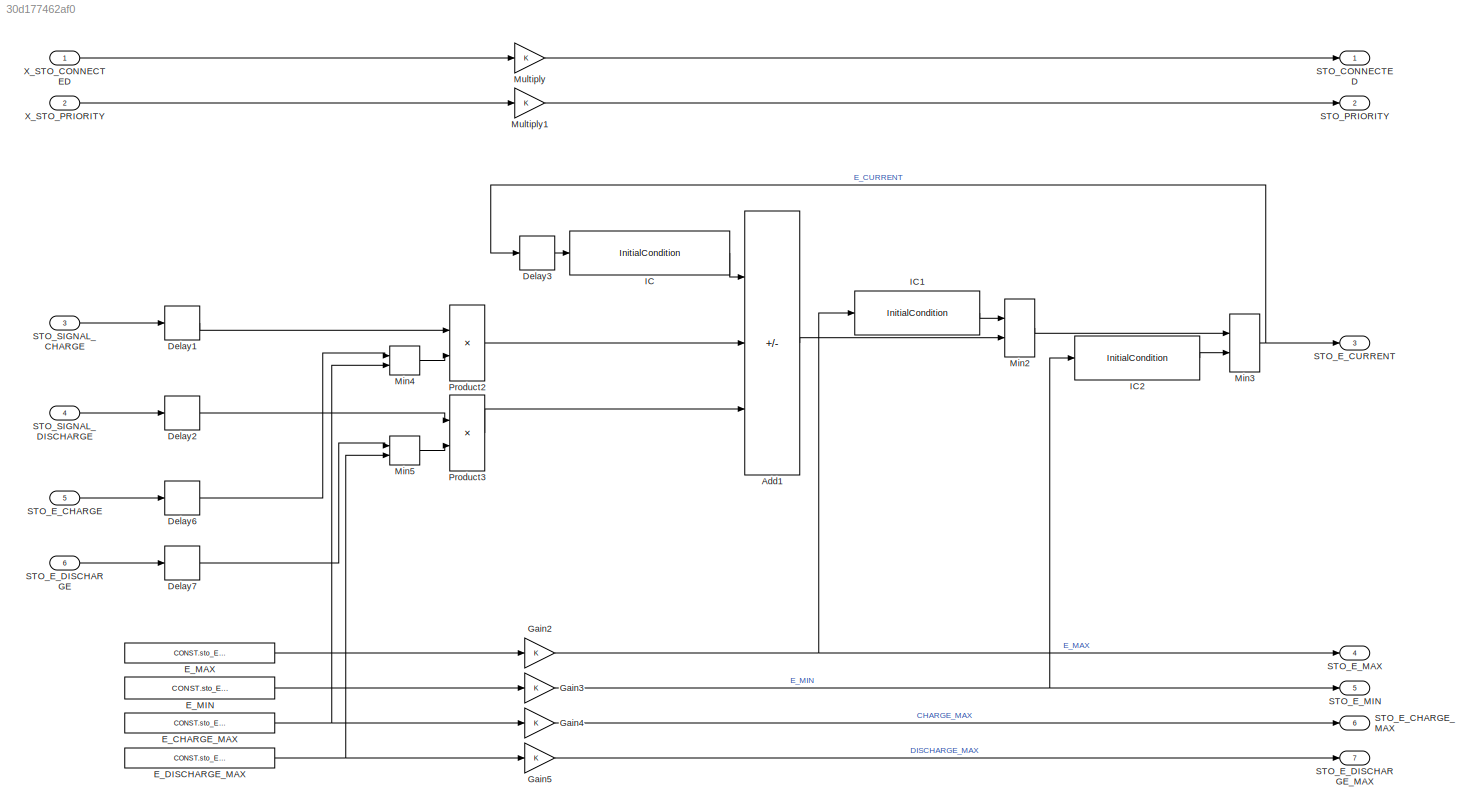
MODEL slx_30d177462af0
KIND model
CONFIG AbsTol = auto
CONFIG EnableMultiTasking = off
CONFIG FixedStep = 1
CONFIG MaxStep = auto
CONFIG MinStep = auto
CONFIG RelTol = 1e-3
CONFIG SampleTimeConstraint = Unconstrained
CONFIG SolverName = FixedStepDiscrete
CONFIG StartTime = 0.0
CONFIG StopTime = 3
BLOCK [Sum] Add1
  IconShape = rectangular
  InputSameDT = on
  Inputs = ++-
  OutDataTypeStr = double
  Ports = [3, 1]
BLOCK [Delay] Delay1
  DelayLength = 1
  InputPortMap = u0
  Ports = [1, 1]
  SampleTime = 1
BLOCK [Delay] Delay2
  DelayLength = 1
  InputPortMap = u0
  Ports = [1, 1]
  SampleTime = 1
BLOCK [Delay] Delay3
  DelayLength = 1
  InputPortMap = u0
  Ports = [1, 1]
  SampleTime = 1
BLOCK [Delay] Delay6
  DelayLength = 1
  InputPortMap = u0
  Ports = [1, 1]
  SampleTime = 1
BLOCK [Delay] Delay7
  DelayLength = 1
  InputPortMap = u0
  Ports = [1, 1]
  SampleTime = 1
BLOCK [Constant] E_CHARGE_MAX
  NameLocation = left
  Value = CONST.sto_E_charge_max(1)
BLOCK [Constant] E_DISCHARGE_MAX
  NameLocation = left
  Value = CONST.sto_E_discharge_max(1)
BLOCK [Constant] E_MAX
  NameLocation = left
  Value = CONST.sto_E_max_Ws(1)
  VectorParams1D = off
BLOCK [Constant] E_MIN
  NameLocation = left
  Value = CONST.sto_E_min_Ws(1)
BLOCK [Gain] Gain2
BLOCK [Gain] Gain3
BLOCK [Gain] Gain4
BLOCK [Gain] Gain5
BLOCK [InitialCondition] IC
  Value = CONST.sto_E_current_initial_Ws(1)
BLOCK [InitialCondition] IC1
  Value = CONST.sto_E_max_Ws(1)
BLOCK [InitialCondition] IC2
  Value = CONST.sto_E_min_Ws(1)
BLOCK [MinMax] Min2
  Inputs = 2
  Ports = [2, 1]
BLOCK [MinMax] Min3
  Function = max
  Inputs = 2
  Ports = [2, 1]
BLOCK [MinMax] Min4
  Inputs = 2
  Ports = [2, 1]
BLOCK [MinMax] Min5
  Inputs = 2
  Ports = [2, 1]
BLOCK [Gain] Multiply
BLOCK [Gain] Multiply1
BLOCK [Product] Product2
  InputSameDT = on
  OutDataTypeStr = double
  Ports = [2, 1]
BLOCK [Product] Product3
  InputSameDT = on
  OutDataTypeStr = double
  Ports = [2, 1]
BLOCK [Outport] STO_CONNECTED
BLOCK [Inport] STO_E_CHARGE
  Port = 5
BLOCK [Outport] STO_E_CHARGE_MAX
  Port = 6
BLOCK [Outport] STO_E_CURRENT
  Port = 3
BLOCK [Inport] STO_E_DISCHARGE
  Port = 6
BLOCK [Outport] STO_E_DISCHARGE_MAX
  Port = 7
BLOCK [Outport] STO_E_MAX
  Port = 4
BLOCK [Outport] STO_E_MIN
  Port = 5
BLOCK [Outport] STO_PRIORITY
  Port = 2
BLOCK [Inport] STO_SIGNAL_CHARGE
  Port = 3
BLOCK [Inport] STO_SIGNAL_DISCHARGE
  Port = 4
BLOCK [Inport] X_STO_CONNECTED
BLOCK [Inport] X_STO_PRIORITY
  Port = 2
LINE Add1:1 -> Min2:2
LINE Delay1:1 -> Product2:1
LINE Delay2:1 -> Product3:1
LINE Delay3:1 -> IC:1
LINE Delay6:1 -> Min4:1
LINE Delay7:1 -> Min5:1
NET E_CHARGE_MAX:1 -> Gain4:1, Min4:2
NET E_DISCHARGE_MAX:1 -> Gain5:1, Min5:2
LINE E_MAX:1 -> Gain2:1
LINE E_MIN:1 -> Gain3:1
NET Gain2:1 -> IC1:1, STO_E_MAX:1
NET Gain3:1 -> IC2:1, STO_E_MIN:1
LINE Gain4:1 -> STO_E_CHARGE_MAX:1
LINE Gain5:1 -> STO_E_DISCHARGE_MAX:1
LINE IC1:1 -> Min2:1
LINE IC2:1 -> Min3:2
LINE IC:1 -> Add1:1
LINE Min2:1 -> Min3:1
NET Min3:1 -> Delay3:1, STO_E_CURRENT:1
LINE Min4:1 -> Product2:2
LINE Min5:1 -> Product3:2
LINE Multiply1:1 -> STO_PRIORITY:1
LINE Multiply:1 -> STO_CONNECTED:1
LINE Product2:1 -> Add1:2
LINE Product3:1 -> Add1:3
LINE STO_E_CHARGE:1 -> Delay6:1
LINE STO_E_DISCHARGE:1 -> Delay7:1
LINE STO_SIGNAL_CHARGE:1 -> Delay1:1
LINE STO_SIGNAL_DISCHARGE:1 -> Delay2:1
LINE X_STO_CONNECTED:1 -> Multiply:1
LINE X_STO_PRIORITY:1 -> Multiply1:1
note: NET lines group one-source signal fan-out (src -> all destinations, sorted); 1:1 wires keep LINE
